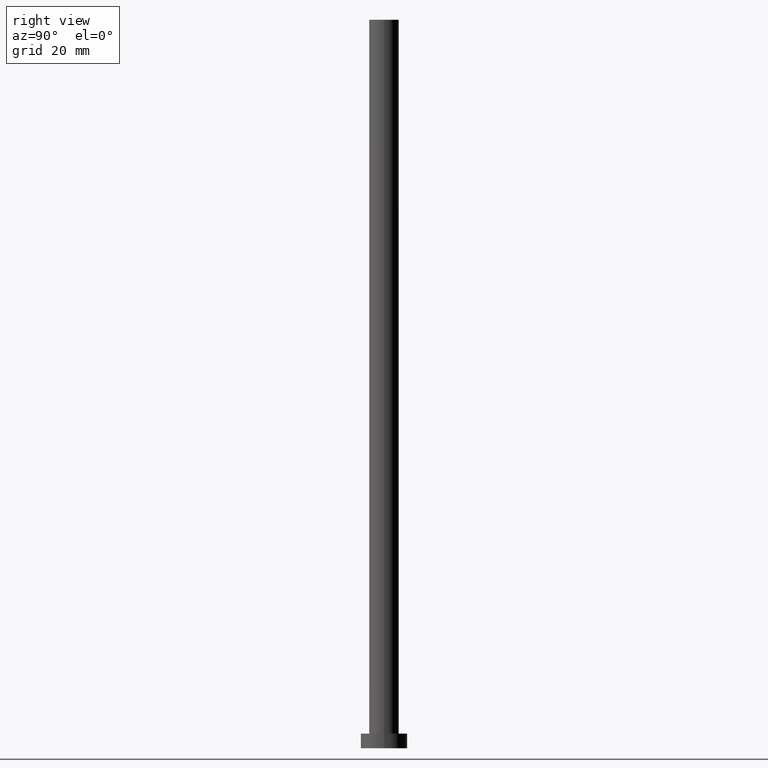
[diagram: clean part render]
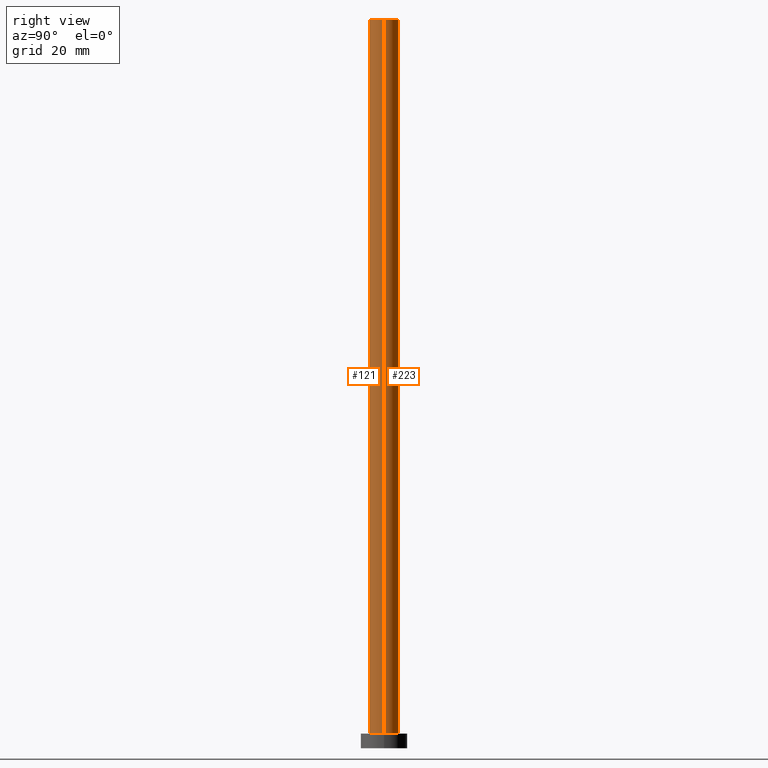
[diagram: same view with one multi-face feature highlighted, each face labeled with its STEP entity id]
A machine part, right view. The highlighted faces form ONE feature: a constant-radius fillet chain: 2 tangent blend faces with common blend radius 5.1 mm. The faces share edges in the B-rep.
Their STEP definitions:
[1] entity #223 (Cylinder):
#1 = VECTOR ( 'NONE', #213, 1000.000000000000000 ) ;
#31 = ORIENTED_EDGE ( 'NONE', *, *, #47, .T. ) ;
#33 = ORIENTED_EDGE ( 'NONE', *, *, #237, .F. ) ;
#38 = CARTESIAN_POINT ( 'NONE',  ( 0.000000000000000000, 0.000000000000000000, 250.0000000000000000 ) ) ;
#41 = CARTESIAN_POINT ( 'NONE',  ( 5.100000000000001421, 6.245698675651502811E-16, 5.000000000000000000 ) ) ;
#44 = DIRECTION ( 'NONE',  ( -0.000000000000000000, -0.000000000000000000, -1.000000000000000000 ) ) ;
#47 = EDGE_CURVE ( 'NONE', #76, #149, #59, .T. ) ;
#48 = AXIS2_PLACEMENT_3D ( 'NONE', #180, #210, #136 ) ;
#53 = VECTOR ( 'NONE', #44, 1000.000000000000000 ) ;
#59 = CIRCLE ( 'NONE', #165, 5.100000000000001421 ) ;
#70 = CARTESIAN_POINT ( 'NONE',  ( -5.100000000000001421, 0.000000000000000000, 250.0000000000000000 ) ) ;
#76 = VERTEX_POINT ( 'NONE', #41 ) ;
#80 = DIRECTION ( 'NONE',  ( 1.000000000000000000, 0.000000000000000000, 0.000000000000000000 ) ) ;
#81 = DIRECTION ( 'NONE',  ( 0.000000000000000000, 0.000000000000000000, 1.000000000000000000 ) ) ;
#82 = DIRECTION ( 'NONE',  ( 1.000000000000000000, 0.000000000000000000, 0.000000000000000000 ) ) ;
#92 = CYLINDRICAL_SURFACE ( 'NONE', #48, 5.100000000000001421 ) ;
#96 = CARTESIAN_POINT ( 'NONE',  ( 0.000000000000000000, 0.000000000000000000, 5.000000000000000000 ) ) ;
#112 = CARTESIAN_POINT ( 'NONE',  ( 5.100000000000001421, 6.245698675651502811E-16, 250.0000000000000000 ) ) ;
#127 = LINE ( 'NONE', #112, #1 ) ;
#134 = AXIS2_PLACEMENT_3D ( 'NONE', #38, #195, #80 ) ;
#136 = DIRECTION ( 'NONE',  ( -1.000000000000000000, 0.000000000000000000, 0.000000000000000000 ) ) ;
#139 = ORIENTED_EDGE ( 'NONE', *, *, #186, .T. ) ;
#145 = LINE ( 'NONE', #222, #53 ) ;
#149 = VERTEX_POINT ( 'NONE', #253 ) ;
#152 = ORIENTED_EDGE ( 'NONE', *, *, #163, .F. ) ;
#163 = EDGE_CURVE ( 'NONE', #171, #149, #145, .T. ) ;
#165 = AXIS2_PLACEMENT_3D ( 'NONE', #96, #81, #82 ) ;
#171 = VERTEX_POINT ( 'NONE', #70 ) ;
#177 = CARTESIAN_POINT ( 'NONE',  ( 5.100000000000001421, 6.245698675651502811E-16, 250.0000000000000000 ) ) ;
#178 = FACE_OUTER_BOUND ( 'NONE', #188, .T. ) ;
#180 = CARTESIAN_POINT ( 'NONE',  ( 0.000000000000000000, 0.000000000000000000, 250.0000000000000000 ) ) ;
#186 = EDGE_CURVE ( 'NONE', #252, #76, #127, .T. ) ;
#188 = EDGE_LOOP ( 'NONE', ( #33, #139, #31, #152 ) ) ;
#195 = DIRECTION ( 'NONE',  ( 0.000000000000000000, 0.000000000000000000, 1.000000000000000000 ) ) ;
#196 = CIRCLE ( 'NONE', #134, 5.100000000000001421 ) ;
#210 = DIRECTION ( 'NONE',  ( -0.000000000000000000, -0.000000000000000000, -1.000000000000000000 ) ) ;
#213 = DIRECTION ( 'NONE',  ( -0.000000000000000000, -0.000000000000000000, -1.000000000000000000 ) ) ;
#222 = CARTESIAN_POINT ( 'NONE',  ( -5.100000000000001421, 0.000000000000000000, 250.0000000000000000 ) ) ;
#223 = ADVANCED_FACE ( 'NONE', ( #178 ), #92, .T. ) ;
#237 = EDGE_CURVE ( 'NONE', #252, #171, #196, .T. ) ;
#252 = VERTEX_POINT ( 'NONE', #177 ) ;
#253 = CARTESIAN_POINT ( 'NONE',  ( -5.100000000000001421, 0.000000000000000000, 5.000000000000000000 ) ) ;
[2] entity #121 (Cylinder):
#1 = VECTOR ( 'NONE', #213, 1000.000000000000000 ) ;
#5 = CARTESIAN_POINT ( 'NONE',  ( 0.000000000000000000, 0.000000000000000000, 5.000000000000000000 ) ) ;
#14 = EDGE_CURVE ( 'NONE', #149, #76, #226, .T. ) ;
#24 = CARTESIAN_POINT ( 'NONE',  ( 0.000000000000000000, 0.000000000000000000, 250.0000000000000000 ) ) ;
#25 = DIRECTION ( 'NONE',  ( 1.000000000000000000, 0.000000000000000000, 0.000000000000000000 ) ) ;
#26 = AXIS2_PLACEMENT_3D ( 'NONE', #24, #191, #39 ) ;
#39 = DIRECTION ( 'NONE',  ( 1.000000000000000000, 0.000000000000000000, 0.000000000000000000 ) ) ;
#41 = CARTESIAN_POINT ( 'NONE',  ( 5.100000000000001421, 6.245698675651502811E-16, 5.000000000000000000 ) ) ;
#44 = DIRECTION ( 'NONE',  ( -0.000000000000000000, -0.000000000000000000, -1.000000000000000000 ) ) ;
#53 = VECTOR ( 'NONE', #44, 1000.000000000000000 ) ;
#70 = CARTESIAN_POINT ( 'NONE',  ( -5.100000000000001421, 0.000000000000000000, 250.0000000000000000 ) ) ;
#76 = VERTEX_POINT ( 'NONE', #41 ) ;
#84 = DIRECTION ( 'NONE',  ( -1.000000000000000000, 0.000000000000000000, 0.000000000000000000 ) ) ;
#98 = CIRCLE ( 'NONE', #26, 5.100000000000001421 ) ;
#101 = CYLINDRICAL_SURFACE ( 'NONE', #215, 5.100000000000001421 ) ;
#106 = ORIENTED_EDGE ( 'NONE', *, *, #246, .F. ) ;
#112 = CARTESIAN_POINT ( 'NONE',  ( 5.100000000000001421, 6.245698675651502811E-16, 250.0000000000000000 ) ) ;
#121 = ADVANCED_FACE ( 'NONE', ( #130 ), #101, .T. ) ;
#127 = LINE ( 'NONE', #112, #1 ) ;
#130 = FACE_OUTER_BOUND ( 'NONE', #225, .T. ) ;
#144 = DIRECTION ( 'NONE',  ( -0.000000000000000000, -0.000000000000000000, -1.000000000000000000 ) ) ;
#145 = LINE ( 'NONE', #222, #53 ) ;
#146 = ORIENTED_EDGE ( 'NONE', *, *, #14, .T. ) ;
#149 = VERTEX_POINT ( 'NONE', #253 ) ;
#163 = EDGE_CURVE ( 'NONE', #171, #149, #145, .T. ) ;
#167 = CARTESIAN_POINT ( 'NONE',  ( 0.000000000000000000, 0.000000000000000000, 250.0000000000000000 ) ) ;
#171 = VERTEX_POINT ( 'NONE', #70 ) ;
#177 = CARTESIAN_POINT ( 'NONE',  ( 5.100000000000001421, 6.245698675651502811E-16, 250.0000000000000000 ) ) ;
#186 = EDGE_CURVE ( 'NONE', #252, #76, #127, .T. ) ;
#191 = DIRECTION ( 'NONE',  ( 0.000000000000000000, 0.000000000000000000, 1.000000000000000000 ) ) ;
#198 = DIRECTION ( 'NONE',  ( 0.000000000000000000, 0.000000000000000000, 1.000000000000000000 ) ) ;
#201 = AXIS2_PLACEMENT_3D ( 'NONE', #5, #198, #25 ) ;
#213 = DIRECTION ( 'NONE',  ( -0.000000000000000000, -0.000000000000000000, -1.000000000000000000 ) ) ;
#215 = AXIS2_PLACEMENT_3D ( 'NONE', #167, #144, #84 ) ;
#222 = CARTESIAN_POINT ( 'NONE',  ( -5.100000000000001421, 0.000000000000000000, 250.0000000000000000 ) ) ;
#225 = EDGE_LOOP ( 'NONE', ( #254, #106, #233, #146 ) ) ;
#226 = CIRCLE ( 'NONE', #201, 5.100000000000001421 ) ;
#233 = ORIENTED_EDGE ( 'NONE', *, *, #163, .T. ) ;
#246 = EDGE_CURVE ( 'NONE', #171, #252, #98, .T. ) ;
#252 = VERTEX_POINT ( 'NONE', #177 ) ;
#253 = CARTESIAN_POINT ( 'NONE',  ( -5.100000000000001421, 0.000000000000000000, 5.000000000000000000 ) ) ;
#254 = ORIENTED_EDGE ( 'NONE', *, *, #186, .F. ) ;